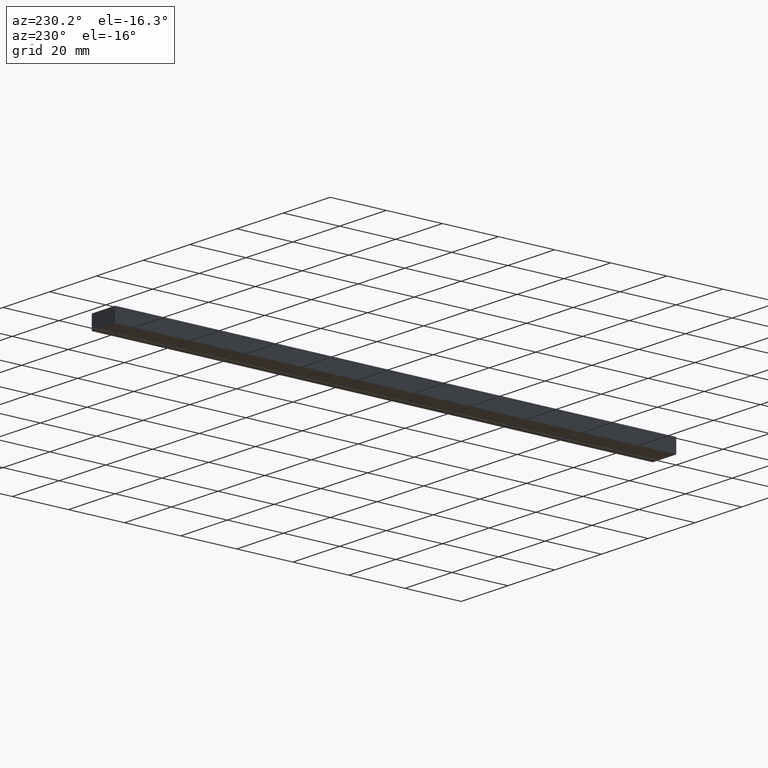
[diagram: clean part render]
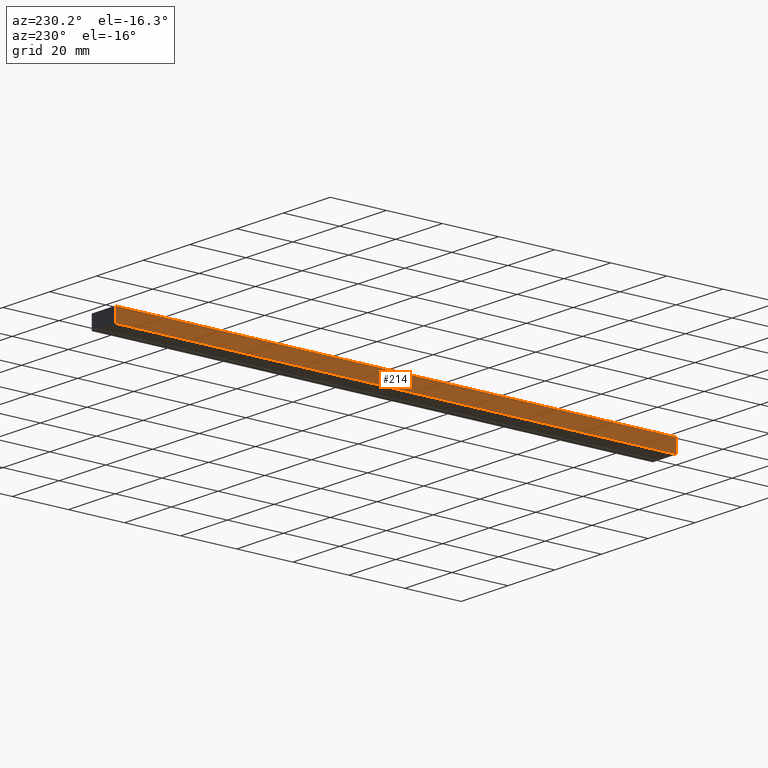
[diagram: same view with one face highlighted and labeled with its STEP entity id]
A machine part, auxiliary view. The second image highlights one B-rep face of the part: STEP entity #214.
In plain terms, the highlighted planar face has unit normal (-1, 0, 0).
Its self-contained STEP definition (entity closure, byte-faithful):
#7 = LINE ( 'NONE', #31, #192 ) ;
#9 = CARTESIAN_POINT ( 'NONE',  ( 0.0000000000000000000, 0.0000000000000000000, 0.0000000000000000000 ) ) ;
#31 = CARTESIAN_POINT ( 'NONE',  ( 0.0000000000000000000, 200.0000000000000000, 0.0000000000000000000 ) ) ;
#51 = CARTESIAN_POINT ( 'NONE',  ( 0.0000000000000000000, 1000.000000000000000, 5.000000000000000000 ) ) ;
#52 = LINE ( 'NONE', #182, #210 ) ;
#61 = EDGE_CURVE ( 'NONE', #167, #152, #146, .T. ) ;
#62 = EDGE_CURVE ( 'NONE', #185, #152, #52, .T. ) ;
#63 = VECTOR ( 'NONE', #161, 1000.000000000000000 ) ;
#86 = EDGE_CURVE ( 'NONE', #134, #167, #7, .T. ) ;
#89 = AXIS2_PLACEMENT_3D ( 'NONE', #51, #143, #165 ) ;
#92 = DIRECTION ( 'NONE',  ( -0.0000000000000000000, -0.0000000000000000000, -1.000000000000000000 ) ) ;
#96 = FACE_OUTER_BOUND ( 'NONE', #108, .T. ) ;
#108 = EDGE_LOOP ( 'NONE', ( #230, #234, #204, #160 ) ) ;
#113 = EDGE_CURVE ( 'NONE', #134, #185, #131, .T. ) ;
#121 = DIRECTION ( 'NONE',  ( -0.0000000000000000000, -0.0000000000000000000, -1.000000000000000000 ) ) ;
#131 = LINE ( 'NONE', #142, #63 ) ;
#134 = VERTEX_POINT ( 'NONE', #232 ) ;
#142 = CARTESIAN_POINT ( 'NONE',  ( 0.0000000000000000000, 1000.000000000000000, 5.000000000000000000 ) ) ;
#143 = DIRECTION ( 'NONE',  ( -1.000000000000000000, 0.0000000000000000000, 0.0000000000000000000 ) ) ;
#146 = LINE ( 'NONE', #222, #202 ) ;
#152 = VERTEX_POINT ( 'NONE', #9 ) ;
#155 = PLANE ( 'NONE',  #89 ) ;
#160 = ORIENTED_EDGE ( 'NONE', *, *, #61, .T. ) ;
#161 = DIRECTION ( 'NONE',  ( 0.0000000000000000000, -1.000000000000000000, 0.0000000000000000000 ) ) ;
#165 = DIRECTION ( 'NONE',  ( 0.0000000000000000000, 0.0000000000000000000, 1.000000000000000000 ) ) ;
#167 = VERTEX_POINT ( 'NONE', #177 ) ;
#171 = DIRECTION ( 'NONE',  ( 0.0000000000000000000, -1.000000000000000000, 0.0000000000000000000 ) ) ;
#177 = CARTESIAN_POINT ( 'NONE',  ( 0.0000000000000000000, 200.0000000000000000, 0.0000000000000000000 ) ) ;
#182 = CARTESIAN_POINT ( 'NONE',  ( 0.0000000000000000000, 0.0000000000000000000, 0.0000000000000000000 ) ) ;
#185 = VERTEX_POINT ( 'NONE', #233 ) ;
#192 = VECTOR ( 'NONE', #92, 1000.000000000000000 ) ;
#202 = VECTOR ( 'NONE', #171, 1000.000000000000000 ) ;
#204 = ORIENTED_EDGE ( 'NONE', *, *, #86, .T. ) ;
#210 = VECTOR ( 'NONE', #121, 1000.000000000000000 ) ;
#214 = ADVANCED_FACE ( 'NONE', ( #96 ), #155, .T. ) ;
#222 = CARTESIAN_POINT ( 'NONE',  ( 0.0000000000000000000, 1000.000000000000000, 0.0000000000000000000 ) ) ;
#230 = ORIENTED_EDGE ( 'NONE', *, *, #62, .F. ) ;
#232 = CARTESIAN_POINT ( 'NONE',  ( 0.0000000000000000000, 200.0000000000000000, 5.000000000000000000 ) ) ;
#233 = CARTESIAN_POINT ( 'NONE',  ( 0.0000000000000000000, 0.0000000000000000000, 5.000000000000000000 ) ) ;
#234 = ORIENTED_EDGE ( 'NONE', *, *, #113, .F. ) ;